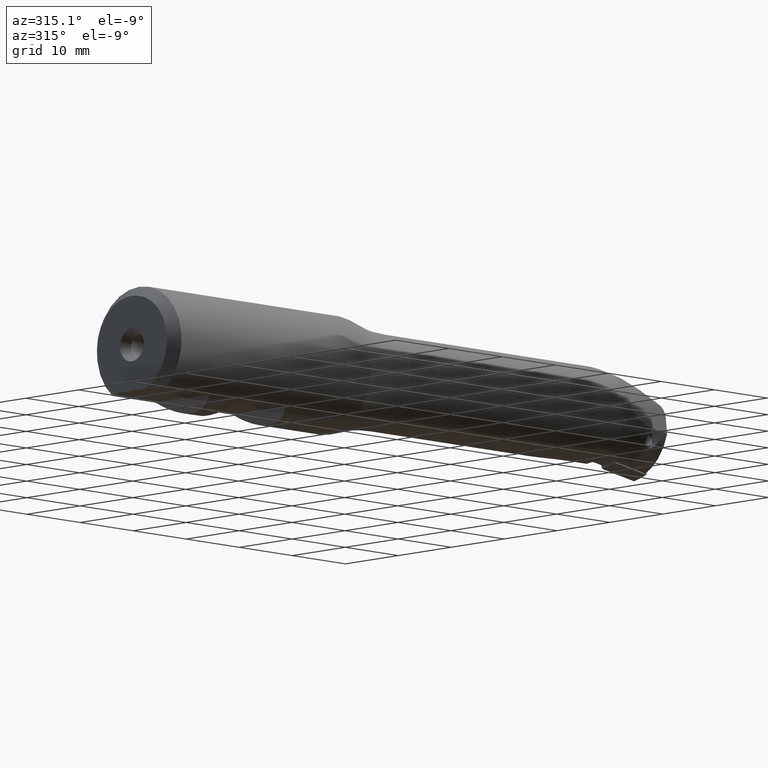
[diagram: clean part render]
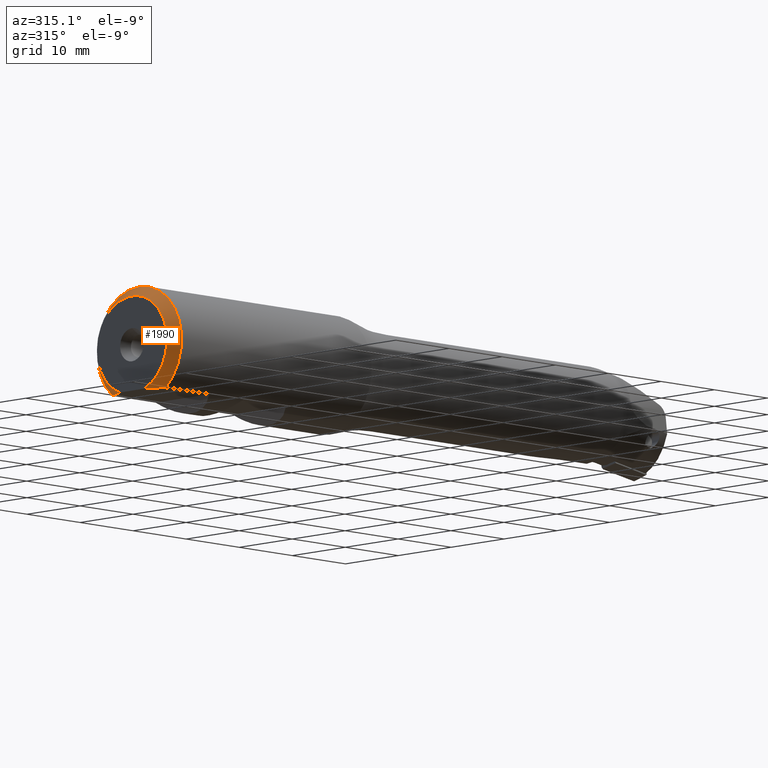
[diagram: same view with one face highlighted and labeled with its STEP entity id]
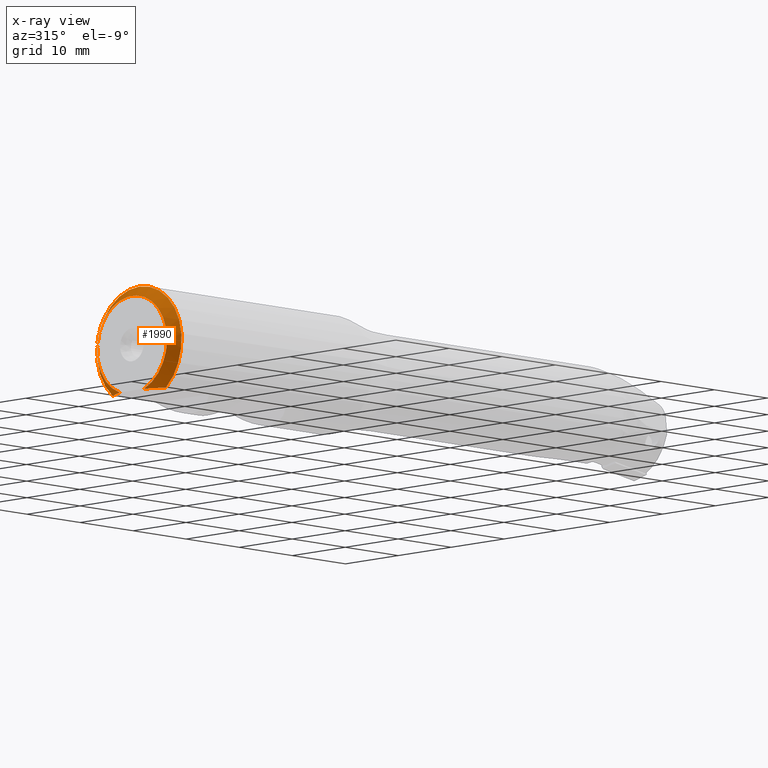
[diagram: x-ray of the same camera — body ghosted, the highlighted face saturated]
A machine part, auxiliary view. The second image highlights one B-rep face of the part: STEP entity #1990.
The next image is the same camera in x-ray: the body ghosted, the highlighted face saturated — about 0% of this face is hidden behind the body in this view.
In plain terms, the highlighted conical surface has half-angle 45 deg.
Its self-contained STEP definition (entity closure, byte-faithful):
#51 = CARTESIAN_POINT ( 'NONE',  ( 1.374999999999997800, 0.0000000000000000000, 0.0000000000000000000 ) ) ;
#59 = CARTESIAN_POINT ( 'NONE',  ( 0.8443957044948018400, 4.183512899218848200, -6.200000000000001100 ) ) ;
#98 = CARTESIAN_POINT ( 'NONE',  ( 1.375000000000004700, 5.055689863905843900, -6.199999999999999300 ) ) ;
#132 = B_SPLINE_CURVE_WITH_KNOTS ( 'NONE', 3,
 ( #3341, #355, #59, #1966, #2813, #2287 ),
 .UNSPECIFIED., .F., .F.,
 ( 4, 2, 4 ),
 ( 0.01498964033621598800, 0.01651543360208723000, 0.01804122686795847600 ),
 .UNSPECIFIED. ) ;
#138 = CARTESIAN_POINT ( 'NONE',  ( 0.8475333585746123200, -4.189047391212119100, -6.199999999999998400 ) ) ;
#299 = EDGE_CURVE ( 'NONE', #1074, #2193, #2093, .T. ) ;
#355 = CARTESIAN_POINT ( 'NONE',  ( 1.102759812682801100, 4.624903649330743600, -6.199999999999999300 ) ) ;
#473 = DIRECTION ( 'NONE',  ( -1.000000000000000000, -0.0000000000000000000, -0.0000000000000000000 ) ) ;
#835 = FACE_OUTER_BOUND ( 'NONE', #3076, .T. ) ;
#869 = ORIENTED_EDGE ( 'NONE', *, *, #1249, .F. ) ;
#1074 = VERTEX_POINT ( 'NONE', #1631 ) ;
#1136 = CONICAL_SURFACE ( 'NONE', #3030, 8.000000000000000000, 0.7853981633974466100 ) ;
#1205 = VERTEX_POINT ( 'NONE', #2727 ) ;
#1249 = EDGE_CURVE ( 'NONE', #1074, #1205, #3244, .T. ) ;
#1282 = EDGE_CURVE ( 'NONE', #1660, #1205, #132, .T. ) ;
#1340 = ORIENTED_EDGE ( 'NONE', *, *, #2748, .T. ) ;
#1418 = AXIS2_PLACEMENT_3D ( 'NONE', #2985, #473, #2382 ) ;
#1548 = ORIENTED_EDGE ( 'NONE', *, *, #1282, .T. ) ;
#1631 = CARTESIAN_POINT ( 'NONE',  ( 0.0000000000000000000, -2.334657362441024700, -6.199999999999999300 ) ) ;
#1660 = VERTEX_POINT ( 'NONE', #98 ) ;
#1786 = CARTESIAN_POINT ( 'NONE',  ( 0.0000000000000000000, -2.334657362441024700, -6.199999999999999300 ) ) ;
#1797 = CARTESIAN_POINT ( 'NONE',  ( 1.103883033249895000, -4.626681006086919900, -6.200000000000002000 ) ) ;
#1811 = CARTESIAN_POINT ( 'NONE',  ( 0.3815471660728556000, -3.286497594889461900, -6.199999999999999300 ) ) ;
#1957 = DIRECTION ( 'NONE',  ( 1.000000000000000000, 0.0000000000000000000, 0.0000000000000000000 ) ) ;
#1966 = CARTESIAN_POINT ( 'NONE',  ( 0.3783296866794274600, 3.279715641321741400, -6.200000000000000200 ) ) ;
#1990 = ADVANCED_FACE ( 'NONE', ( #835 ), #1136, .T. ) ;
#2073 = CIRCLE ( 'NONE', #1418, 8.000000000000000000 ) ;
#2093 = B_SPLINE_CURVE_WITH_KNOTS ( 'NONE', 3,
 ( #1786, #3450, #1811, #138, #1797, #2632 ),
 .UNSPECIFIED., .F., .F.,
 ( 4, 2, 4 ),
 ( 0.02280706587486891800, 0.02434375454163164400, 0.02588044320839437400 ),
 .UNSPECIFIED. ) ;
#2136 = AXIS2_PLACEMENT_3D ( 'NONE', #3353, #2555, #2544 ) ;
#2193 = VERTEX_POINT ( 'NONE', #2910 ) ;
#2287 = CARTESIAN_POINT ( 'NONE',  ( 0.0000000000000000000, 2.334657362441025600, -6.199999999999999300 ) ) ;
#2348 = ORIENTED_EDGE ( 'NONE', *, *, #299, .T. ) ;
#2382 = DIRECTION ( 'NONE',  ( 0.0000000000000000000, 0.0000000000000000000, 1.000000000000000000 ) ) ;
#2544 = DIRECTION ( 'NONE',  ( 0.0000000000000000000, 0.0000000000000000000, 1.000000000000000000 ) ) ;
#2555 = DIRECTION ( 'NONE',  ( -1.000000000000000000, -0.0000000000000000000, -0.0000000000000000000 ) ) ;
#2632 = CARTESIAN_POINT ( 'NONE',  ( 1.374999999999997800, -5.055689863905816300, -6.199999999999999300 ) ) ;
#2727 = CARTESIAN_POINT ( 'NONE',  ( 0.0000000000000000000, 2.334657362441025600, -6.199999999999999300 ) ) ;
#2744 = DIRECTION ( 'NONE',  ( 0.0000000000000000000, 0.0000000000000000000, -1.000000000000000000 ) ) ;
#2748 = EDGE_CURVE ( 'NONE', #2193, #1660, #2073, .T. ) ;
#2813 = CARTESIAN_POINT ( 'NONE',  ( 0.1697391835517367000, 2.816322085119872500, -6.200000000000000200 ) ) ;
#2910 = CARTESIAN_POINT ( 'NONE',  ( 1.374999999999997800, -5.055689863905816300, -6.199999999999999300 ) ) ;
#2985 = CARTESIAN_POINT ( 'NONE',  ( 1.374999999999997800, 0.0000000000000000000, 0.0000000000000000000 ) ) ;
#3030 = AXIS2_PLACEMENT_3D ( 'NONE', #51, #1957, #2744 ) ;
#3076 = EDGE_LOOP ( 'NONE', ( #1340, #1548, #869, #2348 ) ) ;
#3244 = CIRCLE ( 'NONE', #2136, 6.625000000000005300 ) ;
#3341 = CARTESIAN_POINT ( 'NONE',  ( 1.375000000000004700, 5.055689863905843900, -6.199999999999999300 ) ) ;
#3353 = CARTESIAN_POINT ( 'NONE',  ( 0.0000000000000000000, 0.0000000000000000000, 0.0000000000000000000 ) ) ;
#3450 = CARTESIAN_POINT ( 'NONE',  ( 0.1714315222812182500, -2.821124393271452500, -6.200000000000000200 ) ) ;